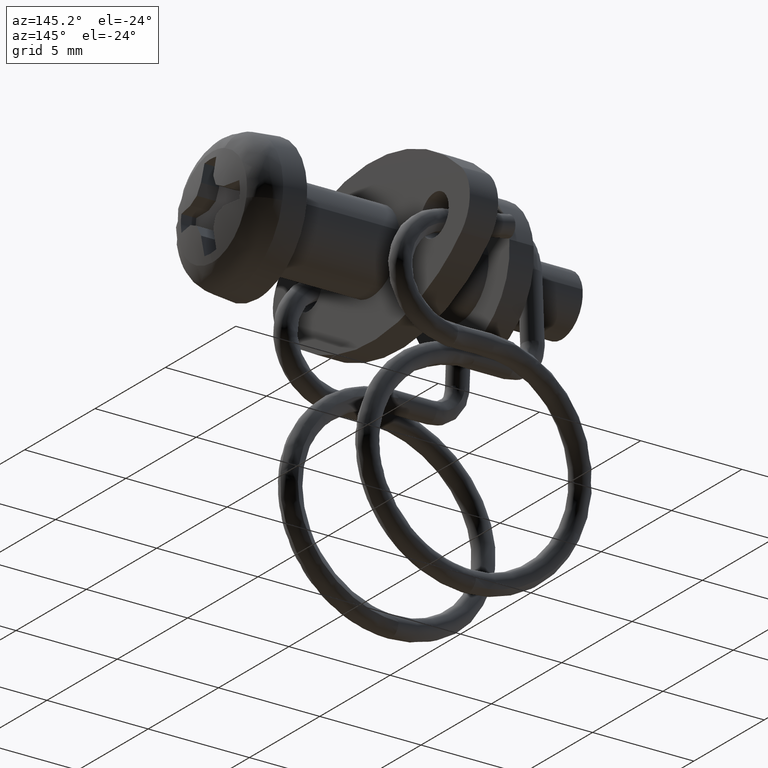
[diagram: clean part render]
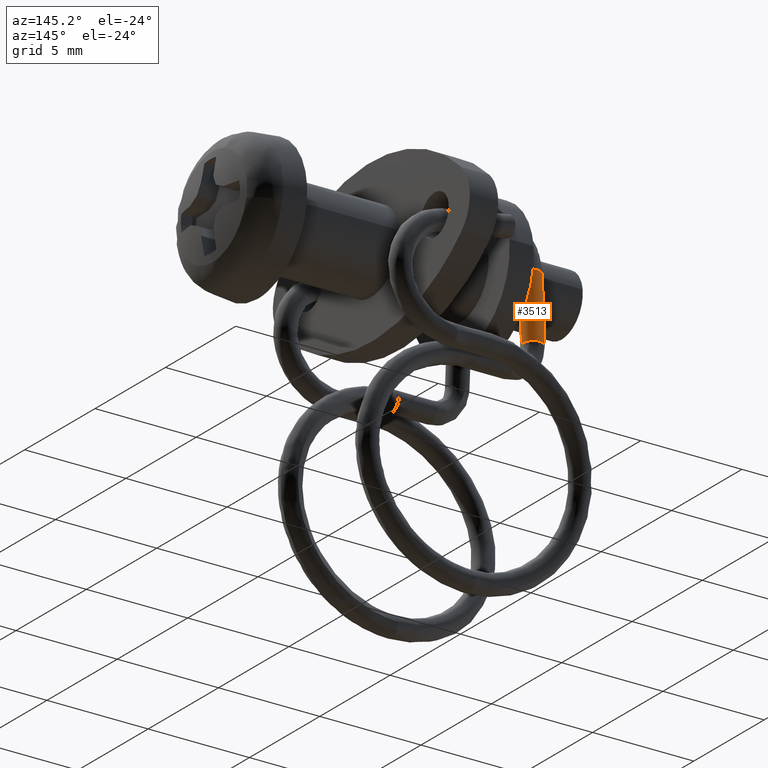
[diagram: same view with one face highlighted and labeled with its STEP entity id]
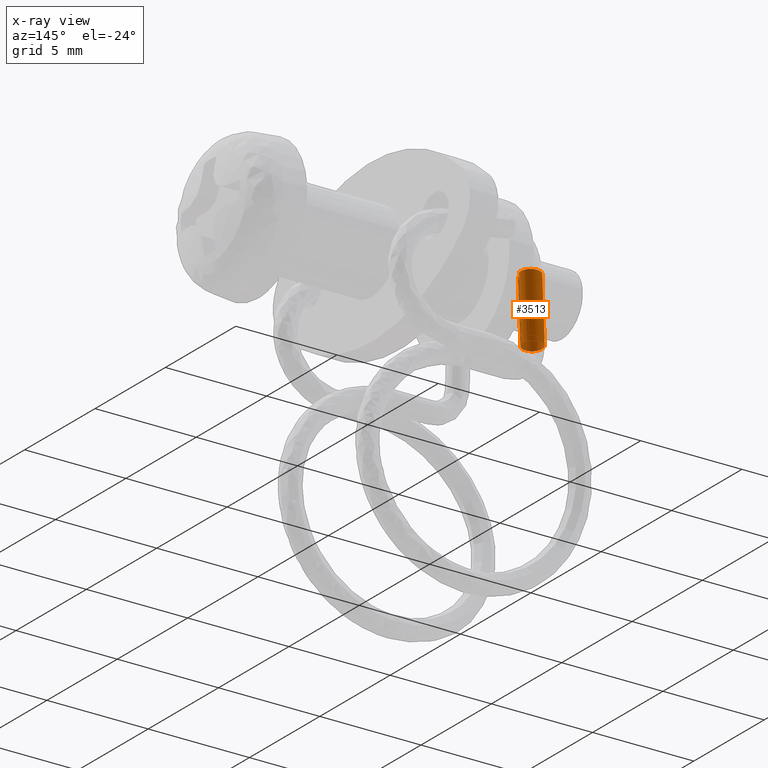
[diagram: x-ray of the same camera — body ghosted, the highlighted face saturated]
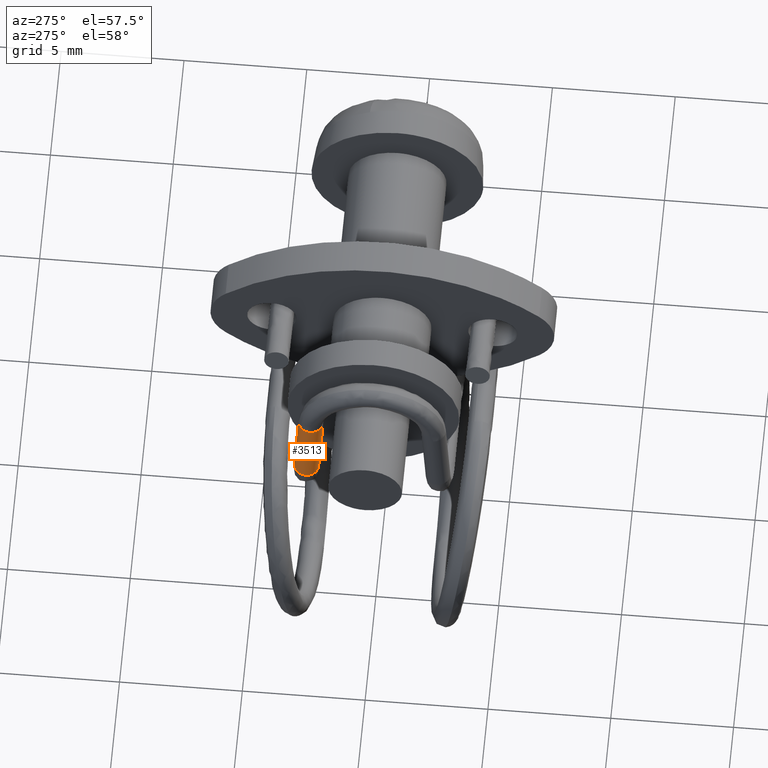
[diagram: same view with one face highlighted and labeled with its STEP entity id]
A machine part, auxiliary view. The second image highlights one B-rep face of the part: STEP entity #3513.
The next image is the same camera in x-ray: the body ghosted, the highlighted face saturated — about 0% of this face is hidden behind the body in this view.
A second angle (auxiliary view) of the same face is appended — the face is thin or edge-on in the first view.
In plain terms, the highlighted face is a freeform B-spline surface patch.
Its self-contained STEP definition (entity closure, byte-faithful):
#3313=CARTESIAN_POINT('',(-11.205862897686329,2.605977175680223,-3.687287337188200));
#3314=CARTESIAN_POINT('',(-11.166566821881668,2.859924980868104,-3.673140019666997));
#3315=CARTESIAN_POINT('',(-11.350721326939880,3.039426888349519,-3.663140049480516));
#3316=CARTESIAN_POINT('',(-11.708498364415057,3.388164817185637,-3.643712016986670));
#3317=CARTESIAN_POINT('',(-12.057777037476390,3.030941680884085,-3.663612756555728));
#3318=CARTESIAN_POINT('',(-12.407055710537730,2.673718544582533,-3.683513496124786));
#3319=CARTESIAN_POINT('',(-12.049278673062560,2.324980615746415,-3.702941528618632));
#3320=CARTESIAN_POINT('',(-11.691501635587382,1.976242686910297,-3.722369561112478));
#3321=CARTESIAN_POINT('',(-11.342222962526050,2.333465823211849,-3.702468821543420));
#3322=CARTESIAN_POINT('',(-11.205862897686329,2.416274546601489,-0.282078807676116));
#3323=CARTESIAN_POINT('',(-11.166566821881668,2.670222351789372,-0.267931490154913));
#3324=CARTESIAN_POINT('',(-11.350721326939880,2.849724259270785,-0.257931519968432));
#3325=CARTESIAN_POINT('',(-11.708498364415057,3.198462188106903,-0.238503487474586));
#3326=CARTESIAN_POINT('',(-12.057777037476390,2.841239051805352,-0.258404227043644));
#3327=CARTESIAN_POINT('',(-12.407055710537730,2.484015915503800,-0.278304966612702));
#3328=CARTESIAN_POINT('',(-12.049278673062560,2.135277986667682,-0.297732999106548));
#3329=CARTESIAN_POINT('',(-11.691501635587382,1.786540057831564,-0.317161031600395));
#3330=CARTESIAN_POINT('',(-11.342222962526050,2.143763194133116,-0.297260292031337));
#3338=(BOUNDED_SURFACE()B_SPLINE_SURFACE(2,1,((#3313,#3322),(#3314,#3323),(#3315,#3324),(#3316,#3325),(#3317,#3326),(#3318,#3327),(#3319,#3328),(#3320,#3329),(#3321,#3330)),.UNSPECIFIED.,.F.,.F.,.U.)B_SPLINE_SURFACE_WITH_KNOTS((3,2,2,2,3),(2,2),(0.628318530717959,1.570796326794897,3.141592653589793,4.712388980384690,6.283185307179586),(0.0,3.410488559860777),.UNSPECIFIED.)GEOMETRIC_REPRESENTATION_ITEM()RATIONAL_B_SPLINE_SURFACE(((0.859411254969543,0.859411254969543),(0.824264068711928,0.824264068711928),(1.0,1.0),(0.707106781186548,0.707106781186548),(1.0,1.0),(0.707106781186548,0.707106781186548),(1.0,1.0),(0.707106781186548,0.707106781186548),(1.0,1.0)))REPRESENTATION_ITEM('')SURFACE());
#3339=CARTESIAN_POINT('',(-11.205862897695390,2.420901439936470,-0.365132674277740));
#3340=VERTEX_POINT('',#3339);
#3341=CARTESIAN_POINT('',(-11.200774087094020,2.524896609196304,-0.359339150371906));
#3342=VERTEX_POINT('',#3341);
#3343=CARTESIAN_POINT('',(-11.205862897695386,2.420901439936471,-0.365132674277740));
#3344=CARTESIAN_POINT('',(-11.197857970920779,2.472632650757848,-0.362250751889379));
#3345=CARTESIAN_POINT('',(-11.200774087094020,2.524896609196304,-0.359339150371906));
#3353=(BOUNDED_CURVE()B_SPLINE_CURVE(2,(#3343,#3344,#3345),.UNSPECIFIED.,.F.,.U.)B_SPLINE_CURVE_WITH_KNOTS((3,3),(0.964472125214318,1.0),.UNSPECIFIED.)CURVE()GEOMETRIC_REPRESENTATION_ITEM()RATIONAL_B_SPLINE_CURVE((0.928583365552918,0.958376505585681,1.0))REPRESENTATION_ITEM(''));
#3354=EDGE_CURVE('',#3340,#3342,#3353,.T.);
#3355=ORIENTED_EDGE('',*,*,#3354,.F.);
#3356=CARTESIAN_POINT('',(-11.205862897695390,2.601463133282305,-3.606259174581529));
#3357=VERTEX_POINT('',#3356);
#3358=CARTESIAN_POINT('',(-11.205862897695390,2.601463133282305,-3.606259174581529));
#3359=CARTESIAN_POINT('',(-11.205862897695390,2.420901439936470,-0.365132674277740));
#3360=QUASI_UNIFORM_CURVE('',1,(#3358,#3359),.UNSPECIFIED.,.F.,.U.);
#3361=EDGE_CURVE('',#3357,#3340,#3360,.T.);
#3362=ORIENTED_EDGE('',*,*,#3361,.F.);
#3363=CARTESIAN_POINT('',(-11.200774087094020,2.705458302542140,-3.600465650675695));
#3364=VERTEX_POINT('',#3363);
#3365=CARTESIAN_POINT('',(-11.205862897695386,2.601463133282305,-3.606259174581529));
#3366=CARTESIAN_POINT('',(-11.197857970920779,2.653194344103684,-3.603377252193167));
#3367=CARTESIAN_POINT('',(-11.200774087094020,2.705458302542140,-3.600465650675695));
#3375=(BOUNDED_CURVE()B_SPLINE_CURVE(2,(#3365,#3366,#3367),.UNSPECIFIED.,.F.,.U.)B_SPLINE_CURVE_WITH_KNOTS((3,3),(0.964472125214318,1.0),.UNSPECIFIED.)CURVE()GEOMETRIC_REPRESENTATION_ITEM()RATIONAL_B_SPLINE_CURVE((0.928583365552918,0.958376505585681,1.0))REPRESENTATION_ITEM(''));
#3376=EDGE_CURVE('',#3357,#3364,#3375,.T.);
#3377=ORIENTED_EDGE('',*,*,#3376,.T.);
#3378=CARTESIAN_POINT('',(-11.665133374058559,3.175700343911207,-3.574268679054436));
#3379=VERTEX_POINT('',#3378);
#3380=CARTESIAN_POINT('',(-11.200774087094020,2.705458302542140,-3.600465650675695));
#3381=CARTESIAN_POINT('',(-11.225298836839215,3.145002005622460,-3.575978869514811));
#3382=CARTESIAN_POINT('',(-11.665133374058566,3.175700343911208,-3.574268679054436));
#3390=(BOUNDED_CURVE()B_SPLINE_CURVE(2,(#3380,#3381,#3382),.UNSPECIFIED.,.F.,.U.)B_SPLINE_CURVE_WITH_KNOTS((3,3),(0.0,0.228358646555104),.UNSPECIFIED.)CURVE()GEOMETRIC_REPRESENTATION_ITEM()RATIONAL_B_SPLINE_CURVE((1.0,0.732461203866368,0.953680786821201))REPRESENTATION_ITEM(''));
#3391=EDGE_CURVE('',#3364,#3379,#3390,.T.);
#3392=ORIENTED_EDGE('',*,*,#3391,.T.);
#3393=CARTESIAN_POINT('',(-12.199225912908430,2.649921116875101,-3.603559602203585));
#3394=VERTEX_POINT('',#3393);
#3395=CARTESIAN_POINT('',(-11.665133374058568,3.175700343911207,-3.574268679054436));
#3396=CARTESIAN_POINT('',(-11.696458598683506,3.177886694137321,-3.574146878371349));
#3397=CARTESIAN_POINT('',(-11.727811650113500,3.176142733944675,-3.574244033605951));
#3398=CARTESIAN_POINT('',(-12.227037563020707,3.148374141111155,-3.575791009369897));
#3399=CARTESIAN_POINT('',(-12.199225912908430,2.649921116875101,-3.603559602203585));
#3407=(BOUNDED_CURVE()B_SPLINE_CURVE(2,(#3395,#3396,#3397,#3398,#3399),.UNSPECIFIED.,.F.,.U.)B_SPLINE_CURVE_WITH_KNOTS((3,2,3),(0.228358646555104,0.250000000000000,0.500000000000000),.UNSPECIFIED.)CURVE()GEOMETRIC_REPRESENTATION_ITEM()RATIONAL_B_SPLINE_CURVE((0.953680786821201,0.974645577320179,1.0,0.707106781186548,1.0))REPRESENTATION_ITEM(''));
#3408=EDGE_CURVE('',#3379,#3394,#3407,.T.);
#3409=ORIENTED_EDGE('',*,*,#3408,.T.);
#3410=CARTESIAN_POINT('',(-11.706283020261500,2.178503213588382,-3.629822080724245));
#3411=VERTEX_POINT('',#3410);
#3412=CARTESIAN_POINT('',(-12.199225912908430,2.649921116875101,-3.603559602203585));
#3413=CARTESIAN_POINT('',(-12.173249637597301,2.184362513378247,-3.629495661715991));
#3414=CARTESIAN_POINT('',(-11.706283020261491,2.178503213588382,-3.629822080724245));
#3422=(BOUNDED_CURVE()B_SPLINE_CURVE(2,(#3412,#3413,#3414),.UNSPECIFIED.,.F.,.U.)B_SPLINE_CURVE_WITH_KNOTS((3,3),(0.500000000000000,0.738104035891793),.UNSPECIFIED.)CURVE()GEOMETRIC_REPRESENTATION_ITEM()RATIONAL_B_SPLINE_CURVE((1.0,0.721043770060716,0.973452373607052))REPRESENTATION_ITEM(''));
#3423=EDGE_CURVE('',#3394,#3411,#3422,.T.);
#3424=ORIENTED_EDGE('',*,*,#3423,.T.);
#3425=CARTESIAN_POINT('',(-11.342222962526019,2.328951780872529,-3.621440658933485));
#3426=VERTEX_POINT('',#3425);
#3427=CARTESIAN_POINT('',(-11.706283020261496,2.178503213588382,-3.629822080724245));
#3428=CARTESIAN_POINT('',(-11.689223151908596,2.178289153565560,-3.629834005847877));
#3429=CARTESIAN_POINT('',(-11.672188349888939,2.179236685472565,-3.629781219273329));
#3430=CARTESIAN_POINT('',(-11.478050009969389,2.190035300639009,-3.629179633300039));
#3431=CARTESIAN_POINT('',(-11.342222962525994,2.328951780872558,-3.621440658933484));
#3439=(BOUNDED_CURVE()B_SPLINE_CURVE(2,(#3427,#3428,#3429,#3430,#3431),.UNSPECIFIED.,.F.,.U.)B_SPLINE_CURVE_WITH_KNOTS((3,2,3),(0.738104035891794,0.750000000000000,0.868415209084095),.UNSPECIFIED.)CURVE()GEOMETRIC_REPRESENTATION_ITEM()RATIONAL_B_SPLINE_CURVE((0.973452373607054,0.986063011125833,1.0,0.861267953019565,0.853959780837952))REPRESENTATION_ITEM(''));
#3440=EDGE_CURVE('',#3411,#3426,#3439,.T.);
#3441=ORIENTED_EDGE('',*,*,#3440,.T.);
#3442=CARTESIAN_POINT('',(-11.342222962526019,2.148390087526694,-0.380314158629697));
#3443=VERTEX_POINT('',#3442);
#3444=CARTESIAN_POINT('',(-11.342222962526019,2.328951780872529,-3.621440658933485));
#3445=CARTESIAN_POINT('',(-11.342222962526019,2.148390087526694,-0.380314158629697));
#3446=QUASI_UNIFORM_CURVE('',1,(#3444,#3445),.UNSPECIFIED.,.F.,.U.);
#3447=EDGE_CURVE('',#3426,#3443,#3446,.T.);
#3448=ORIENTED_EDGE('',*,*,#3447,.T.);
#3449=CARTESIAN_POINT('',(-11.693716980107659,1.997941520234034,-0.388695580350528));
#3450=VERTEX_POINT('',#3449);
#3451=CARTESIAN_POINT('',(-11.693716980107659,1.997941520234035,-0.388695580350528));
#3452=CARTESIAN_POINT('',(-11.682944751018919,1.998076685597342,-0.388688050356043));
#3453=CARTESIAN_POINT('',(-11.672188349888939,1.998674992126730,-0.388654718969540));
#3454=CARTESIAN_POINT('',(-11.478050009969387,2.009473607293174,-0.388053132996250));
#3455=CARTESIAN_POINT('',(-11.342222962525993,2.148390087526721,-0.380314158629695));
#3463=(BOUNDED_CURVE()B_SPLINE_CURVE(2,(#3451,#3452,#3453,#3454,#3455),.UNSPECIFIED.,.F.,.U.)B_SPLINE_CURVE_WITH_KNOTS((3,2,3),(0.742449666811081,0.750000000000000,0.868415209084095),.UNSPECIFIED.)CURVE()GEOMETRIC_REPRESENTATION_ITEM()RATIONAL_B_SPLINE_CURVE((0.982842776691977,0.991154234436733,1.0,0.861267953019566,0.853959780837952))REPRESENTATION_ITEM(''));
#3464=EDGE_CURVE('',#3450,#3443,#3463,.T.);
#3465=ORIENTED_EDGE('',*,*,#3464,.F.);
#3466=CARTESIAN_POINT('',(-12.199225912908430,2.469359423529265,-0.362433101899797));
#3467=VERTEX_POINT('',#3466);
#3468=CARTESIAN_POINT('',(-12.199225912908430,2.469359423529265,-0.362433101899797));
#3469=CARTESIAN_POINT('',(-12.172587453538100,1.991932856586182,-0.389030320295146));
#3470=CARTESIAN_POINT('',(-11.693716980107659,1.997941520234034,-0.388695580350528));
#3478=(BOUNDED_CURVE()B_SPLINE_CURVE(2,(#3468,#3469,#3470),.UNSPECIFIED.,.F.,.U.)B_SPLINE_CURVE_WITH_KNOTS((3,3),(0.500000000000000,0.742449666811080),.UNSPECIFIED.)CURVE()GEOMETRIC_REPRESENTATION_ITEM()RATIONAL_B_SPLINE_CURVE((1.0,0.715952546749815,0.982842776691975))REPRESENTATION_ITEM(''));
#3479=EDGE_CURVE('',#3467,#3450,#3478,.T.);
#3480=ORIENTED_EDGE('',*,*,#3479,.F.);
#3481=CARTESIAN_POINT('',(-11.763968553213850,2.992251431978841,-0.333303024269457));
#3482=VERTEX_POINT('',#3481);
#3483=CARTESIAN_POINT('',(-11.763968553213850,2.992251431978841,-0.333303024269457));
#3484=CARTESIAN_POINT('',(-12.225087386482548,2.932860498157354,-0.336611666391304));
#3485=CARTESIAN_POINT('',(-12.199225912908430,2.469359423529265,-0.362433101899797));
#3493=(BOUNDED_CURVE()B_SPLINE_CURVE(2,(#3483,#3484,#3485),.UNSPECIFIED.,.F.,.U.)B_SPLINE_CURVE_WITH_KNOTS((3,3),(0.262655652890065,0.500000000000000),.UNSPECIFIED.)CURVE()GEOMETRIC_REPRESENTATION_ITEM()RATIONAL_B_SPLINE_CURVE((0.971847125622877,0.721933800831175,1.0))REPRESENTATION_ITEM(''));
#3494=EDGE_CURVE('',#3482,#3467,#3493,.T.);
#3495=ORIENTED_EDGE('',*,*,#3494,.F.);
#3496=CARTESIAN_POINT('',(-11.200774087094020,2.524896609196304,-0.359339150371906));
#3497=CARTESIAN_POINT('',(-11.228585737206298,3.023349633432359,-0.331570557538217));
#3498=CARTESIAN_POINT('',(-11.727811650113500,2.995581040598839,-0.333117533302163));
#3499=CARTESIAN_POINT('',(-11.745950684992113,2.994572087616002,-0.333173741617102));
#3500=CARTESIAN_POINT('',(-11.763968553213848,2.992251431978841,-0.333303024269457));
#3508=(BOUNDED_CURVE()B_SPLINE_CURVE(2,(#3496,#3497,#3498,#3499,#3500),.UNSPECIFIED.,.F.,.U.)B_SPLINE_CURVE_WITH_KNOTS((3,2,3),(0.0,0.250000000000000,0.262655652890065),.UNSPECIFIED.)CURVE()GEOMETRIC_REPRESENTATION_ITEM()RATIONAL_B_SPLINE_CURVE((1.0,0.707106781186548,1.0,0.985172980355372,0.971847125622878))REPRESENTATION_ITEM(''));
#3509=EDGE_CURVE('',#3342,#3482,#3508,.T.);
#3510=ORIENTED_EDGE('',*,*,#3509,.F.);
#3511=EDGE_LOOP('',(#3355,#3362,#3377,#3392,#3409,#3424,#3441,#3448,#3465,#3480,#3495,#3510));
#3512=FACE_OUTER_BOUND('',#3511,.T.);
#3513=ADVANCED_FACE('',(#3512),#3338,.T.);